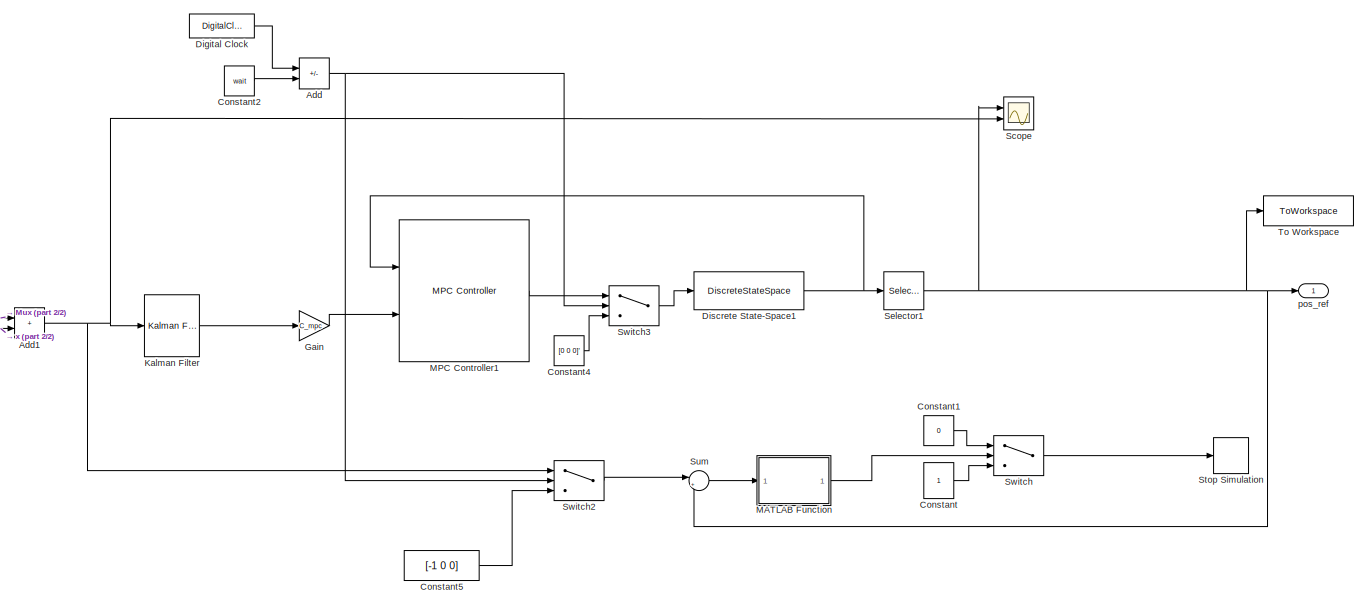
[diagram: root canvas - part 1/2, most of the canvas]
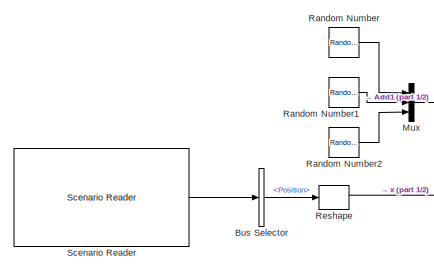
[diagram: root canvas - part 2/2, middle left region]
MODEL slx_a130c285fcce
KIND model
CONFIG AbsTol = auto
CONFIG EnableMultiTasking = off
CONFIG FixedStep = auto
CONFIG MaxStep = auto
CONFIG MinStep = auto
CONFIG RelTol = 1e-3
CONFIG SampleTimeConstraint = Unconstrained
CONFIG SolverName = VariableStepAuto
CONFIG StartTime = 0.0
CONFIG StopTime = inf
BLOCK [Sum] Add
  IconShape = rectangular
  Inputs = +-
  Ports = [2, 1]
BLOCK [Sum] Add1
  IconShape = rectangular
  Ports = [2, 1]
BLOCK [BusSelector] Bus Selector
  OutputSignals = Actors.Position
  Ports = [1, 1]
BLOCK [Constant] Constant
BLOCK [Constant] Constant1
  Value = 0
BLOCK [Constant] Constant2
  Value = wait
BLOCK [Constant] Constant4
  Value = [0 0 0]'
BLOCK [Constant] Constant5
  Value = [-1 0 0]
BLOCK [DigitalClock] Digital Clock
  SampleTime = 0.01
BLOCK [DiscreteStateSpace] Discrete State-Space1
  A = A_mpc
  B = B_mpc
  C = C_mpc
  D = D_mpc
  InitialCondition = [0;0;0; 0;0;0  ; 5 ;0;0]
  SampleTime = 0.01
BLOCK [Gain] Gain
  Gain = C_mpc
  Multiplication = Matrix(K*u)
BLOCK [Reference] Kalman Filter  REF=ctrlSharedLib/Kalman Filter
  Ports = [1, 1]
  SourceBlock = ctrlSharedLib/Kalman Filter
  SourceProductBaseCode = CT,ID
  SourceType = ctrlKalmanFilter
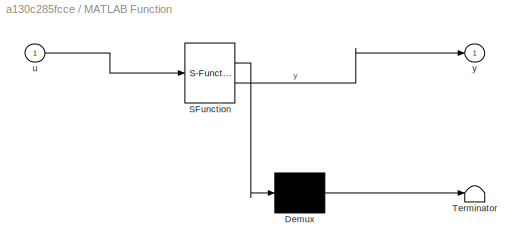
BLOCK [SubSystem] MATLAB Function
  ErrorFcn = Stateflow.Translate.translate
  PermitHierarchicalResolution = ExplicitOnly
  Ports = [1, 1]
  RequestExecContextInheritance = off
  SFBlockType = MATLAB Function
  TreatAsAtomicUnit = on
BLOCK [Demux] MATLAB Function/ Demux 
  Outputs = 1
  Ports = [1, 1]
BLOCK [S-Function] MATLAB Function/ SFunction 
  EnableBusSupport = on
  FunctionName = sf_sfun
  PortCounts = [1 2]
  Ports = [1, 2]
  SFcnIsStateOwnerBlock = off
  SFunctionDeploymentMode = off
  Tag = Stateflow S-Function 2
BLOCK [Terminator] MATLAB Function/ Terminator 
BLOCK [Inport] MATLAB Function/u
BLOCK [Outport] MATLAB Function/y
BLOCK [Reference] MPC Controller1  REF=mpclib/MPC Controller  (lib defined in mdl_ae329e0e0455)
  Ports = [2, 1]
  SCDEnableBlockLinearizationSpecification = on
  SourceBlock = mpclib/MPC Controller
  SourceProductBaseCode = MP
  SourceType = MPC
BLOCK [Mux] Mux
  DisplayOption = bar
  Inputs = 3
  Ports = [3, 1]
BLOCK [RandomNumber] Random Number
  SampleTime = 0.01
  Variance = 0.01
  VectorParams1D = off
BLOCK [RandomNumber] Random Number1
  SampleTime = 0.01
  Variance = 0.01
  VectorParams1D = off
BLOCK [RandomNumber] Random Number2
  SampleTime = 0.01
  Variance = 0.01
  VectorParams1D = off
BLOCK [Reshape] Reshape
  Ports = [1, 1]
BLOCK [Reference] Scenario Reader  REF=drivingscenarioandsensors/Scenario Reader
  Ports = [0, 1]
  SourceBlock = drivingscenarioandsensors/Scenario Reader
  SourceProductBaseCode = DR
  SourceType = driving.scenario.internal.ScenarioReader
BLOCK [Scope] Scope
  Floating = off
  NumInputPorts = 2
  Ports = [2]
  ScopeSpecificationString = Simulink.scopes.TimeScopeBlockCfg('CurrentConfiguration', extmgr.ConfigurationSet(extmgr.Configuration('Core','General UI',true),extmgr.Configuration('Core','Source UI',true),extmgr.Configuration('Sources','WiredSimulink',true),extmgr.Configuration('Visuals','Time Domain',true,'SerializedDisplays',{struct('MinYLimReal','-1.05011','MaxYLimReal','6.51274','YLabelReal','','MinYLimMag','0.00000','MaxY...<+1594ch>
BLOCK [Selector] Selector1
  IndexOptions = Index vector (dialog)
  Indices = [1 2 3]
  InputPortWidth = 9
  OutputSizes = 1
  Ports = [1, 1]
BLOCK [Stop] Stop Simulation
BLOCK [Sum] Sum
  Inputs = |+-
  Ports = [2, 1]
BLOCK [Switch] Switch
  Criteria = u2 > Threshold
  InputSameDT = off
  SaturateOnIntegerOverflow = off
  Threshold = 1
BLOCK [Switch] Switch2
  InputSameDT = off
  SaturateOnIntegerOverflow = off
BLOCK [Switch] Switch3
  InputSameDT = off
  SaturateOnIntegerOverflow = off
BLOCK [ToWorkspace] To Workspace
  FixptAsFi = on
  MaxDataPoints = inf
  Ports = [1]
  SampleTime = -1
  VariableName = ref
BLOCK [Outport] pos_ref
NET Add1:1 -> Kalman Filter:1, Scope:2, Switch2:1
NET Add:1 -> Switch2:2, Switch3:2
LINE Bus Selector:1 -> Reshape:1
LINE Constant1:1 -> Switch:1
LINE Constant2:1 -> Add:2
LINE Constant4:1 -> Switch3:3
LINE Constant5:1 -> Switch2:3
LINE Constant:1 -> Switch:3
LINE Digital Clock:1 -> Add:1
NET Discrete State-Space1:1 -> MPC Controller1:1, Selector1:1
LINE Gain:1 -> MPC Controller1:2
LINE Kalman Filter:1 -> Gain:1
LINE MATLAB Function:1 -> Switch:2
LINE MPC Controller1:1 -> Switch3:1
LINE Mux:1 -> Add1:1
LINE Random Number1:1 -> Mux:2
LINE Random Number2:1 -> Mux:3
LINE Random Number:1 -> Mux:1
LINE Reshape:1 -> Add1:2
LINE Scenario Reader:1 -> Bus Selector:1
NET Selector1:1 -> Scope:1, Sum:2, To Workspace:1, pos_ref:1
LINE Sum:1 -> MATLAB Function:1
LINE Switch2:1 -> Sum:1
LINE Switch3:1 -> Discrete State-Space1:1
LINE Switch:1 -> Stop Simulation:1
note: NET lines group one-source signal fan-out (src -> all destinations, sorted); 1:1 wires keep LINE
CHART MATLAB Function states=1 transitions=1
  STATE_LABEL 'eML_blk_kernel()'
  STATE_LABEL 'SCRIPT:\nfunction y = fcn(u)\n\ny = norm(u);\n'
CHART  states=0 transitions=0
